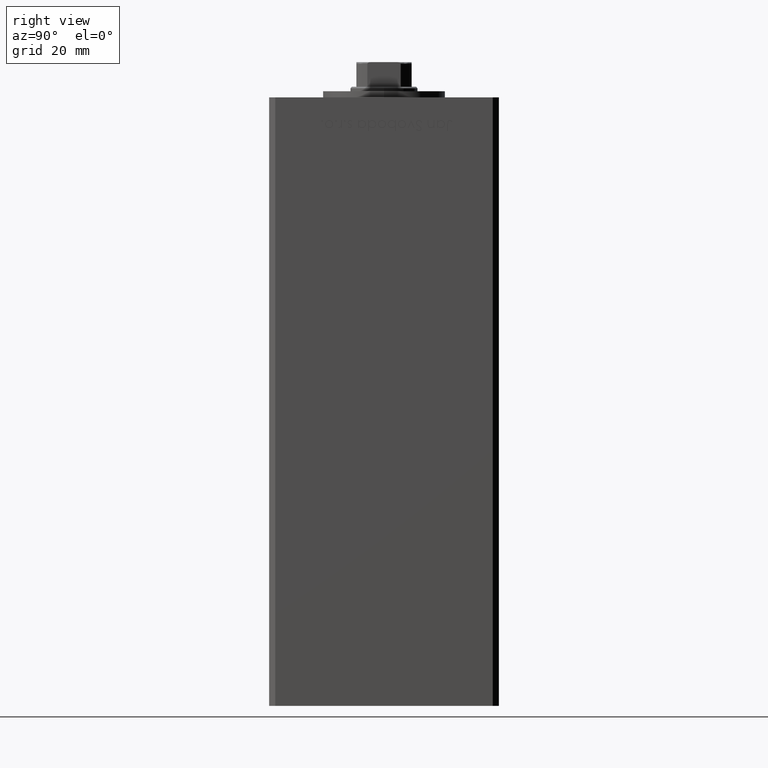
[diagram: clean part render]
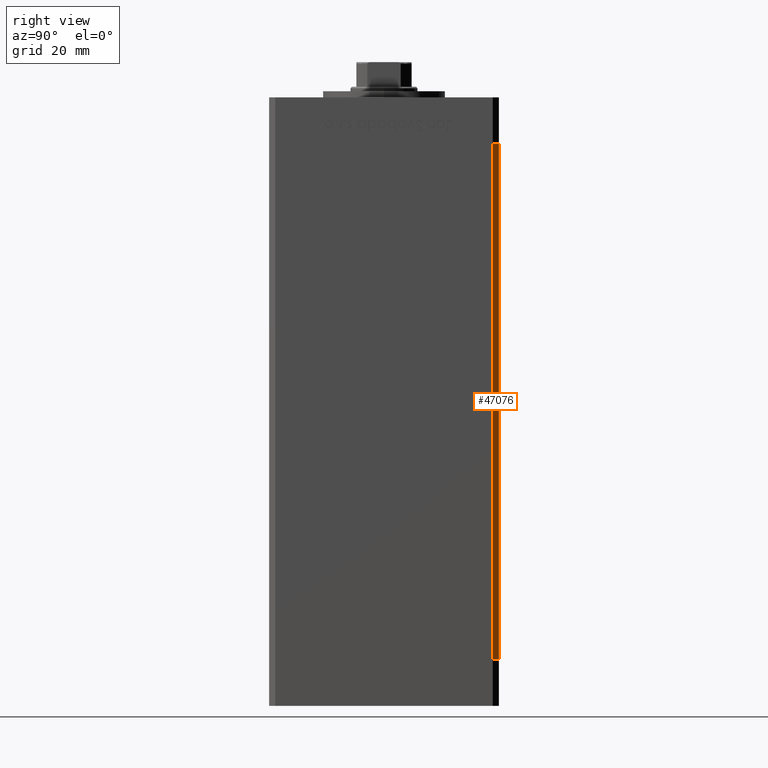
[diagram: same view with one face highlighted and labeled with its STEP entity id]
A machine part, right view. The second image highlights one B-rep face of the part: STEP entity #47076.
In plain terms, the highlighted planar face has unit normal (0.7071, 0.7071, 0).
Its self-contained STEP definition (entity closure, byte-faithful):
#3833 = CARTESIAN_POINT ( 'NONE',  ( 40.50000000000000000, 37.50000000000000711, 0.000000000000000000 ) ) ;
#4293 = CARTESIAN_POINT ( 'NONE',  ( 42.50000000000000711, 35.50000000000001421, 168.5000000000000000 ) ) ;
#4351 = CARTESIAN_POINT ( 'NONE',  ( 40.50000000000000000, 37.50000000000000711, 168.5000000000000000 ) ) ;
#7556 = DIRECTION ( 'NONE',  ( 0.7071067811865500152, -0.7071067811865451302, 0.000000000000000000 ) ) ;
#8884 = LINE ( 'NONE', #20751, #51651 ) ;
#9440 = ORIENTED_EDGE ( 'NONE', *, *, #19329, .F. ) ;
#10437 = CARTESIAN_POINT ( 'NONE',  ( 40.50000000000000000, 37.50000000000000711, 168.5000000000000000 ) ) ;
#11517 = CARTESIAN_POINT ( 'NONE',  ( 40.50000000000000000, 37.50000000000000711, 168.5000000000000000 ) ) ;
#11767 = LINE ( 'NONE', #11517, #11803 ) ;
#11803 = VECTOR ( 'NONE', #7556, 1000.000000000000114 ) ;
#12094 = CARTESIAN_POINT ( 'NONE',  ( 42.50000000000000711, 35.50000000000001421, 0.000000000000000000 ) ) ;
#12200 = VERTEX_POINT ( 'NONE', #23287 ) ;
#17053 = EDGE_CURVE ( 'NONE', #47318, #38239, #23798, .T. ) ;
#19329 = EDGE_CURVE ( 'NONE', #12200, #38239, #39953, .T. ) ;
#20751 = CARTESIAN_POINT ( 'NONE',  ( 40.50000000000000000, 37.50000000000000711, 168.5000000000000000 ) ) ;
#23287 = CARTESIAN_POINT ( 'NONE',  ( 40.50000000000000000, 37.50000000000000711, 0.000000000000000000 ) ) ;
#23798 = LINE ( 'NONE', #4293, #33994 ) ;
#26030 = ORIENTED_EDGE ( 'NONE', *, *, #17053, .T. ) ;
#28337 = PLANE ( 'NONE',  #30520 ) ;
#30520 = AXIS2_PLACEMENT_3D ( 'NONE', #4351, #47637, #48139 ) ;
#31500 = VECTOR ( 'NONE', #35993, 1000.000000000000114 ) ;
#31531 = FACE_OUTER_BOUND ( 'NONE', #33755, .T. ) ;
#33755 = EDGE_LOOP ( 'NONE', ( #9440, #44262, #40701, #26030 ) ) ;
#33994 = VECTOR ( 'NONE', #39644, 1000.000000000000000 ) ;
#35993 = DIRECTION ( 'NONE',  ( 0.7071067811865500152, -0.7071067811865451302, 0.000000000000000000 ) ) ;
#36831 = DIRECTION ( 'NONE',  ( -0.000000000000000000, -0.000000000000000000, -1.000000000000000000 ) ) ;
#38239 = VERTEX_POINT ( 'NONE', #12094 ) ;
#38585 = EDGE_CURVE ( 'NONE', #39664, #47318, #11767, .T. ) ;
#39644 = DIRECTION ( 'NONE',  ( -0.000000000000000000, -0.000000000000000000, -1.000000000000000000 ) ) ;
#39664 = VERTEX_POINT ( 'NONE', #10437 ) ;
#39953 = LINE ( 'NONE', #3833, #31500 ) ;
#40701 = ORIENTED_EDGE ( 'NONE', *, *, #38585, .T. ) ;
#44262 = ORIENTED_EDGE ( 'NONE', *, *, #45312, .F. ) ;
#45312 = EDGE_CURVE ( 'NONE', #39664, #12200, #8884, .T. ) ;
#47076 = ADVANCED_FACE ( 'NONE', ( #31531 ), #28337, .T. ) ;
#47318 = VERTEX_POINT ( 'NONE', #51272 ) ;
#47637 = DIRECTION ( 'NONE',  ( 0.7071067811865451302, 0.7071067811865500152, -0.000000000000000000 ) ) ;
#48139 = DIRECTION ( 'NONE',  ( -0.7071067811865500152, 0.7071067811865451302, 0.000000000000000000 ) ) ;
#51272 = CARTESIAN_POINT ( 'NONE',  ( 42.50000000000000711, 35.50000000000001421, 168.5000000000000000 ) ) ;
#51651 = VECTOR ( 'NONE', #36831, 1000.000000000000000 ) ;